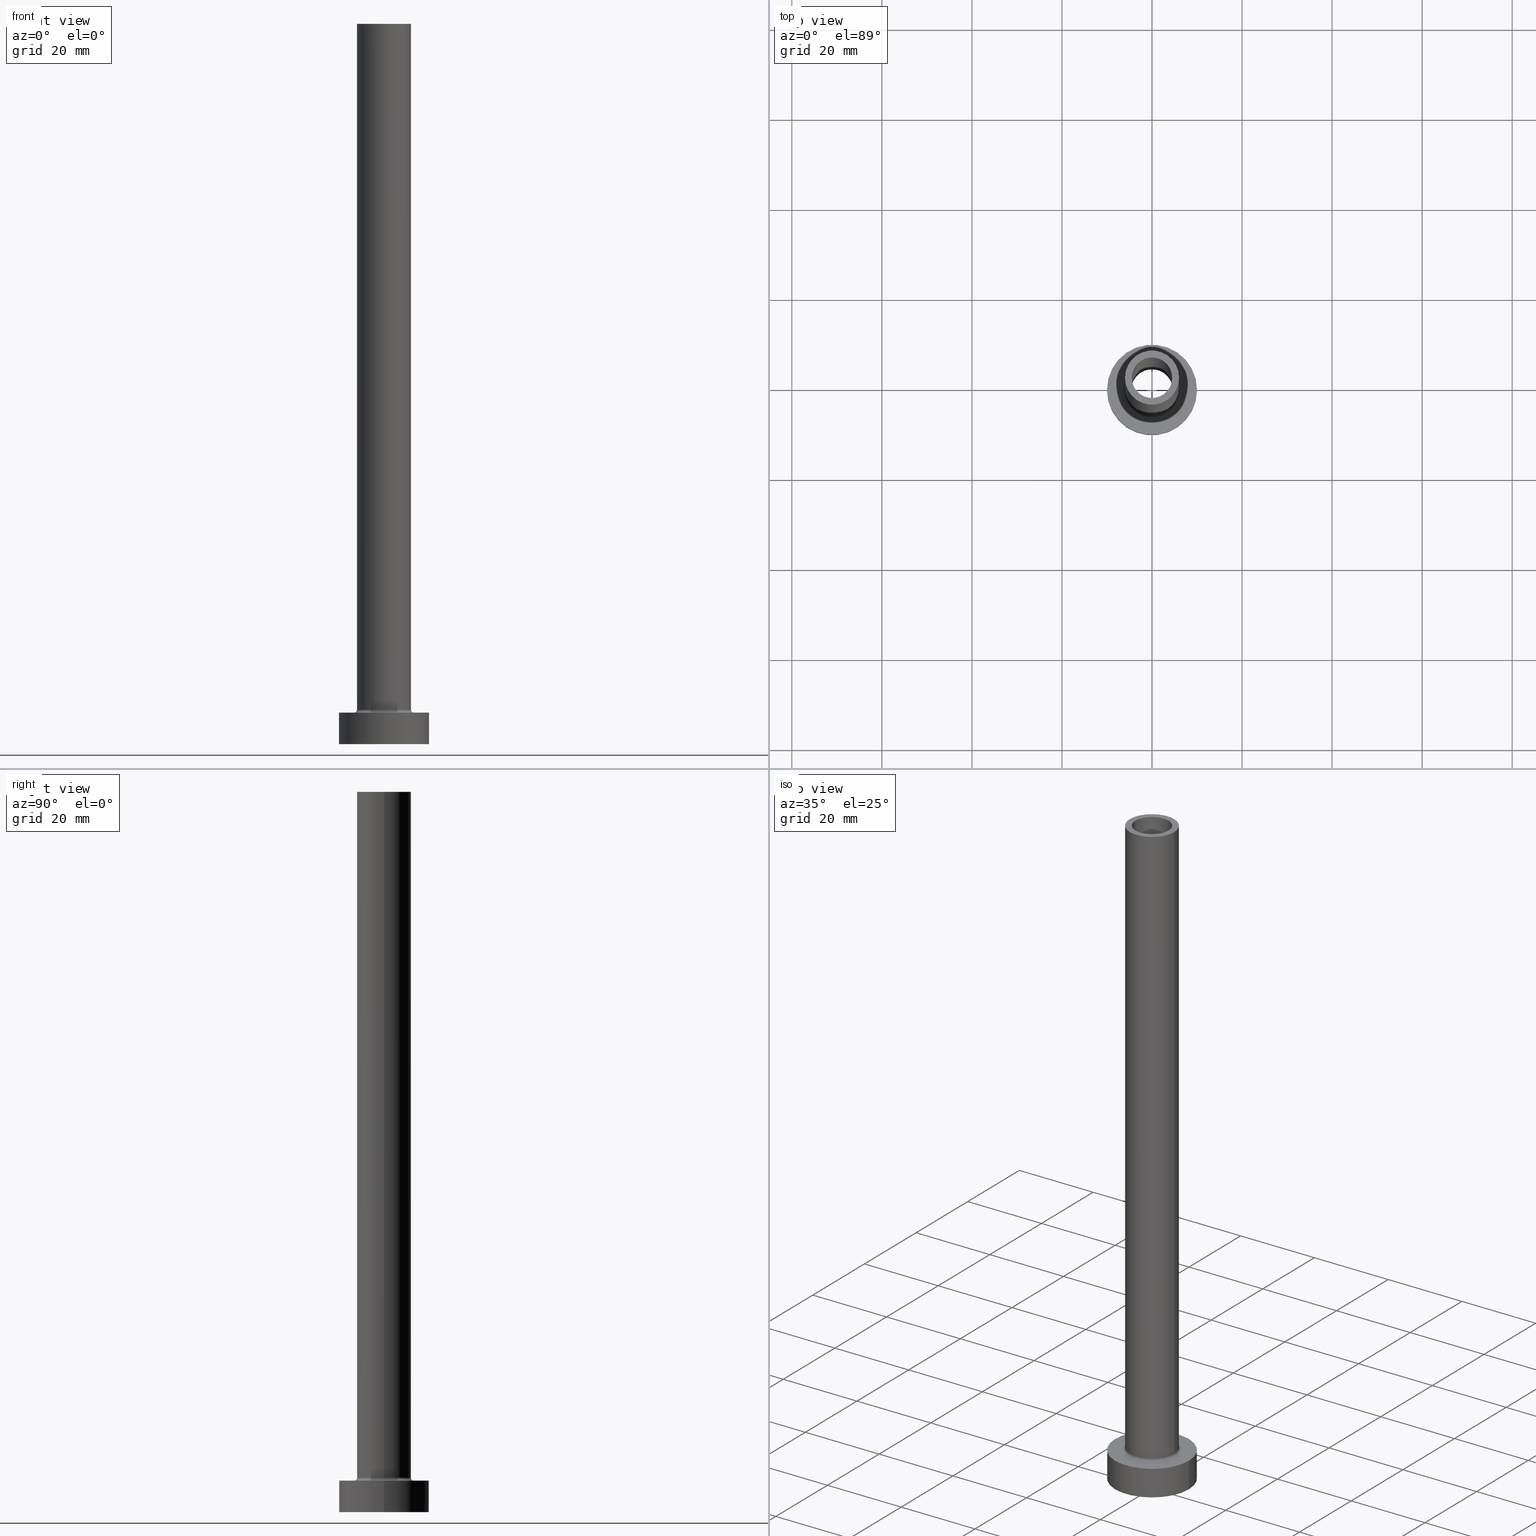
[diagram: canonical four-view strip — front | top / right | iso, engineering-drawing reading convention]
A machine part, canonical four-view strip (front | top / right | iso — engineering-drawing reading convention). The complete STEP part file that produces these views, byte-faithful:
ISO-10303-21;
HEADER;
FILE_DESCRIPTION (( 'STEP AP203' ),
    '1' );
FILE_NAME ('9dc5.STEP',
    '2023-02-13T11:03:16',
    ( '' ),
    ( '' ),
    'SwSTEP 2.0',
    'SolidWorks 2019',
    '' );
FILE_SCHEMA (( 'CONFIG_CONTROL_DESIGN' ));
ENDSEC;

DATA;
#1 = ADVANCED_FACE ( 'NONE', ( #326, #364 ), #114, .T. ) ;
#2 = VERTEX_POINT ( 'NONE', #297 ) ;
#3 = DIRECTION ( 'NONE',  ( 1.000000000000000000, 0.000000000000000000, 0.000000000000000000 ) ) ;
#4 = LINE ( 'NONE', #185, #147 ) ;
#5 = ADVANCED_FACE ( 'NONE', ( #266, #360 ), #183, .T. ) ;
#6 = AXIS2_PLACEMENT_3D ( 'NONE', #52, #191, #339 ) ;
#7 = CARTESIAN_POINT ( 'NONE',  ( 10.00000000000000000, 1.224646799147353256E-15, 0.000000000000000000 ) ) ;
#8 = DIRECTION ( 'NONE',  ( 0.000000000000000000, 0.000000000000000000, 1.000000000000000000 ) ) ;
#9 = DIRECTION ( 'NONE',  ( -0.000000000000000000, -0.000000000000000000, -1.000000000000000000 ) ) ;
#10 = ADVANCED_FACE ( 'NONE', ( #149 ), #293, .T. ) ;
#11 = EDGE_LOOP ( 'NONE', ( #430, #344, #249, #132 ) ) ;
#12 = TOROIDAL_SURFACE ( 'NONE', #175, 6.700000000000001066, 0.6999999999999999556 ) ;
#13 = CC_DESIGN_PERSON_AND_ORGANIZATION_ASSIGNMENT ( #245, #205, ( #59 ) ) ;
#14 = EDGE_CURVE ( 'NONE', #306, #256, #152, .T. ) ;
#15 = CARTESIAN_POINT ( 'NONE',  ( 4.500000000000000000, 5.510910596163087583E-16, 115.0000000000000000 ) ) ;
#16 = EDGE_CURVE ( 'NONE', #111, #254, #328, .T. ) ;
#17 = CYLINDRICAL_SURFACE ( 'NONE', #235, 4.500000000000000000 ) ;
#18 = CC_DESIGN_PERSON_AND_ORGANIZATION_ASSIGNMENT ( #448, #453, ( #29 ) ) ;
#19 = DIRECTION ( 'NONE',  ( 0.000000000000000000, 0.000000000000000000, -1.000000000000000000 ) ) ;
#20 = CARTESIAN_POINT ( 'NONE',  ( 0.000000000000000000, 0.000000000000000000, 115.0000000000000000 ) ) ;
#21 = CIRCLE ( 'NONE', #6, 6.000000000000000888 ) ;
#22 = DIRECTION ( 'NONE',  ( -1.000000000000000000, 0.000000000000000000, 0.000000000000000000 ) ) ;
#23 = VERTEX_POINT ( 'NONE', #130 ) ;
#24 = PERSON_AND_ORGANIZATION ( #238, #418 ) ;
#25 = CLOSED_SHELL ( 'NONE', ( #451, #423, #255, #79, #202, #10, #5, #187, #196, #1, #409, #355, #158, #396 ) ) ;
#26 = ORIENTED_EDGE ( 'NONE', *, *, #279, .F. ) ;
#27 = APPLICATION_PROTOCOL_DEFINITION ( 'international standard', 'config_control_design', 1994, #156 ) ;
#28 = AXIS2_PLACEMENT_3D ( 'NONE', #81, #222, #363 ) ;
#29 = PRODUCT_DEFINITION_FORMATION_WITH_SPECIFIED_SOURCE ( 'LIBOVOLN�', '', #59, .NOT_KNOWN. ) ;
#30 = DIRECTION ( 'NONE',  ( 1.000000000000000000, 0.000000000000000000, -0.000000000000000000 ) ) ;
#31 = ORIENTED_EDGE ( 'NONE', *, *, #400, .T. ) ;
#32 = CARTESIAN_POINT ( 'NONE',  ( 0.000000000000000000, 0.000000000000000000, 160.0000000000000000 ) ) ;
#33 = CIRCLE ( 'NONE', #361, 4.650000000000000355 ) ;
#34 = CC_DESIGN_PERSON_AND_ORGANIZATION_ASSIGNMENT ( #342, #384, ( #45 ) ) ;
#35 = CARTESIAN_POINT ( 'NONE',  ( 0.000000000000000000, 0.000000000000000000, 115.0000000000000000 ) ) ;
#36 = ORIENTED_EDGE ( 'NONE', *, *, #387, .F. ) ;
#37 = TOROIDAL_SURFACE ( 'NONE', #298, 6.700000000000001066, 0.6999999999999999556 ) ;
#38 = COORDINATED_UNIVERSAL_TIME_OFFSET ( 1, 0, .AHEAD. ) ;
#39 = CARTESIAN_POINT ( 'NONE',  ( 0.000000000000000000, 0.000000000000000000, 115.0000000000000000 ) ) ;
#40 = ORIENTED_EDGE ( 'NONE', *, *, #305, .F. ) ;
#41 = CARTESIAN_POINT ( 'NONE',  ( 0.000000000000000000, 0.000000000000000000, 128.1521861300697935 ) ) ;
#42 = EDGE_CURVE ( 'NONE', #218, #421, #122, .T. ) ;
#43 = CALENDAR_DATE ( 2023, 13, 2 ) ;
#44 = DIRECTION ( 'NONE',  ( 0.000000000000000000, 0.000000000000000000, 1.000000000000000000 ) ) ;
#45 = PRODUCT_DEFINITION ( 'NEZN�M�', '', #29, #197 ) ;
#46 = LOCAL_TIME ( 12, 3, 16.00000000000000000, #38 ) ;
#47 = CARTESIAN_POINT ( 'NONE',  ( 4.650000000000000355, 5.694607616035192869E-16, 0.000000000000000000 ) ) ;
#48 = EDGE_CURVE ( 'NONE', #357, #246, #33, .T. ) ;
#49 = ORIENTED_EDGE ( 'NONE', *, *, #440, .F. ) ;
#50 = CC_DESIGN_DATE_AND_TIME_ASSIGNMENT ( #129, #273, ( #45 ) ) ;
#51 = CARTESIAN_POINT ( 'NONE',  ( 0.000000000000000000, 0.000000000000000000, 160.0000000000000000 ) ) ;
#52 = CARTESIAN_POINT ( 'NONE',  ( 0.000000000000000000, 0.000000000000000000, 7.700000000000012612 ) ) ;
#53 = VECTOR ( 'NONE', #436, 1000.000000000000000 ) ;
#54 = CARTESIAN_POINT ( 'NONE',  ( 0.000000000000000000, 0.000000000000000000, 160.0000000000000000 ) ) ;
#55 = DIRECTION ( 'NONE',  ( 1.000000000000000000, 0.000000000000000000, 0.000000000000000000 ) ) ;
#56 = DIRECTION ( 'NONE',  ( 0.000000000000000000, 0.000000000000000000, -1.000000000000000000 ) ) ;
#57 = CARTESIAN_POINT ( 'NONE',  ( 0.000000000000000000, 0.000000000000000000, 0.000000000000000000 ) ) ;
#58 = LOCAL_TIME ( 12, 3, 16.00000000000000000, #311 ) ;
#59 = PRODUCT ( '9dc5', '9dc5', '', ( #67 ) ) ;
#60 = EDGE_CURVE ( 'NONE', #218, #357, #341, .T. ) ;
#61 = DIRECTION ( 'NONE',  ( -1.000000000000000000, 0.000000000000000000, 0.000000000000000000 ) ) ;
#62 = VERTEX_POINT ( 'NONE', #445 ) ;
#63 = DIRECTION ( 'NONE',  ( 0.000000000000000000, 0.000000000000000000, -1.000000000000000000 ) ) ;
#64 = EDGE_LOOP ( 'NONE', ( #241, #315, #103, #388 ) ) ;
#65 = CIRCLE ( 'NONE', #159, 4.650000000000000355 ) ;
#66 = EDGE_LOOP ( 'NONE', ( #112, #248 ) ) ;
#67 = MECHANICAL_CONTEXT ( 'NONE', #182, 'mechanical' ) ;
#68 = VECTOR ( 'NONE', #263, 1000.000000000000000 ) ;
#69 = ORIENTED_EDGE ( 'NONE', *, *, #319, .F. ) ;
#70 = PLANE ( 'NONE',  #390 ) ;
#71 = AXIS2_PLACEMENT_3D ( 'NONE', #87, #397, #220 ) ;
#72 = ORIENTED_EDGE ( 'NONE', *, *, #340, .T. ) ;
#73 = ORIENTED_EDGE ( 'NONE', *, *, #198, .T. ) ;
#74 = CIRCLE ( 'NONE', #366, 4.500000000000000000 ) ;
#75 = CARTESIAN_POINT ( 'NONE',  ( 4.500000000000000000, 5.510910596163087583E-16, 160.0000000000000000 ) ) ;
#76 = ORIENTED_EDGE ( 'NONE', *, *, #120, .T. ) ;
#77 = CIRCLE ( 'NONE', #141, 4.500000000000000000 ) ;
#78 = DATE_TIME_ROLE ( 'classification_date' ) ;
#79 = ADVANCED_FACE ( 'NONE', ( #274 ), #270, .T. ) ;
#80 = FACE_OUTER_BOUND ( 'NONE', #449, .T. ) ;
#81 = CARTESIAN_POINT ( 'NONE',  ( 0.000000000000000000, 0.000000000000000000, 0.000000000000000000 ) ) ;
#82 = APPROVAL ( #362, 'NEUR�EN�' ) ;
#83 = EDGE_CURVE ( 'NONE', #286, #447, #295, .T. ) ;
#84 = PERSON_AND_ORGANIZATION ( #238, #418 ) ;
#85 = DIRECTION ( 'NONE',  ( 1.000000000000000000, 0.000000000000000000, 0.000000000000000000 ) ) ;
#86 = VECTOR ( 'NONE', #56, 1000.000000000000000 ) ;
#87 = CARTESIAN_POINT ( 'NONE',  ( 0.000000000000000000, 0.000000000000000000, 160.0000000000000000 ) ) ;
#88 = ORIENTED_EDGE ( 'NONE', *, *, #446, .F. ) ;
#89 = DIRECTION ( 'NONE',  ( 0.000000000000000000, 0.000000000000000000, 1.000000000000000000 ) ) ;
#90 = CARTESIAN_POINT ( 'NONE',  ( -4.650000000000000355, 0.000000000000000000, 128.1521861300697935 ) ) ;
#91 = AXIS2_PLACEMENT_3D ( 'NONE', #383, #460, #454 ) ;
#92 = DIRECTION ( 'NONE',  ( 0.000000000000000000, 0.000000000000000000, 1.000000000000000000 ) ) ;
#93 = DIRECTION ( 'NONE',  ( -1.000000000000000000, 0.000000000000000000, 0.000000000000000000 ) ) ;
#94 = DIRECTION ( 'NONE',  ( -1.000000000000000000, 0.000000000000000000, 0.000000000000000000 ) ) ;
#95 = UNCERTAINTY_MEASURE_WITH_UNIT (LENGTH_MEASURE( 1.000000000000000082E-05 ), #406, 'distance_accuracy_value', 'NONE');
#96 = CARTESIAN_POINT ( 'NONE',  ( 0.000000000000000000, 0.000000000000000000, 160.0000000000000000 ) ) ;
#97 = CALENDAR_DATE ( 2023, 13, 2 ) ;
#98 = DIRECTION ( 'NONE',  ( 1.000000000000000000, 0.000000000000000000, 0.000000000000000000 ) ) ;
#99 = AXIS2_PLACEMENT_3D ( 'NONE', #338, #19, #161 ) ;
#100 = VERTEX_POINT ( 'NONE', #441 ) ;
#101 = EDGE_CURVE ( 'NONE', #62, #306, #157, .T. ) ;
#102 = DIRECTION ( 'NONE',  ( 0.000000000000000000, -1.000000000000000000, 0.000000000000000000 ) ) ;
#103 = ORIENTED_EDGE ( 'NONE', *, *, #143, .F. ) ;
#104 = ORIENTED_EDGE ( 'NONE', *, *, #14, .T. ) ;
#105 = ORIENTED_EDGE ( 'NONE', *, *, #83, .F. ) ;
#106 = ORIENTED_EDGE ( 'NONE', *, *, #345, .T. ) ;
#107 = ORIENTED_EDGE ( 'NONE', *, *, #299, .F. ) ;
#108 = ORIENTED_EDGE ( 'NONE', *, *, #365, .F. ) ;
#109 = APPROVAL_ROLE ( '' ) ;
#110 = DIRECTION ( 'NONE',  ( 1.000000000000000000, 0.000000000000000000, 0.000000000000000000 ) ) ;
#111 = VERTEX_POINT ( 'NONE', #413 ) ;
#112 = ORIENTED_EDGE ( 'NONE', *, *, #42, .F. ) ;
#113 = CARTESIAN_POINT ( 'NONE',  ( 0.000000000000000000, 0.000000000000000000, 7.700000000000012612 ) ) ;
#114 = PLANE ( 'NONE',  #71 ) ;
#115 = SECURITY_CLASSIFICATION ( '', '', #228 ) ;
#116 = LINE ( 'NONE', #189, #68 ) ;
#117 = LINE ( 'NONE', #371, #373 ) ;
#118 = VERTEX_POINT ( 'NONE', #15 ) ;
#119 = ORIENTED_EDGE ( 'NONE', *, *, #211, .T. ) ;
#120 = EDGE_CURVE ( 'NONE', #447, #281, #215, .T. ) ;
#121 = DIRECTION ( 'NONE',  ( 1.000000000000000000, 0.000000000000000000, 0.000000000000000000 ) ) ;
#122 = CIRCLE ( 'NONE', #223, 4.650000000000000355 ) ;
#123 = AXIS2_PLACEMENT_3D ( 'NONE', #51, #443, #124 ) ;
#124 = DIRECTION ( 'NONE',  ( 1.000000000000000000, 0.000000000000000000, 0.000000000000000000 ) ) ;
#125 = DIRECTION ( 'NONE',  ( 1.224646799147353207E-16, 1.000000000000000000, -0.000000000000000000 ) ) ;
#126 = EDGE_CURVE ( 'NONE', #287, #100, #74, .T. ) ;
#127 = AXIS2_PLACEMENT_3D ( 'NONE', #237, #125, #195 ) ;
#128 = ORIENTED_EDGE ( 'NONE', *, *, #48, .T. ) ;
#129 = DATE_AND_TIME ( #313, #394 ) ;
#130 = CARTESIAN_POINT ( 'NONE',  ( 10.00000000000000000, 1.224646799147353256E-15, 7.000000000000000000 ) ) ;
#131 = AXIS2_PLACEMENT_3D ( 'NONE', #35, #280, #164 ) ;
#132 = ORIENTED_EDGE ( 'NONE', *, *, #198, .F. ) ;
#133 = CARTESIAN_POINT ( 'NONE',  ( 0.000000000000000000, 0.000000000000000000, 160.0000000000000000 ) ) ;
#134 = MANIFOLD_SOLID_BREP ( 'Odebrat vysunut�m4', #25 ) ;
#135 = ORIENTED_EDGE ( 'NONE', *, *, #239, .T. ) ;
#136 = ORIENTED_EDGE ( 'NONE', *, *, #365, .T. ) ;
#137 = ORIENTED_EDGE ( 'NONE', *, *, #60, .T. ) ;
#138 = APPROVAL_ROLE ( '' ) ;
#139 = ORIENTED_EDGE ( 'NONE', *, *, #446, .T. ) ;
#140 = PLANE ( 'NONE',  #131 ) ;
#141 = AXIS2_PLACEMENT_3D ( 'NONE', #39, #44, #3 ) ;
#142 = EDGE_LOOP ( 'NONE', ( #419, #76 ) ) ;
#143 = EDGE_CURVE ( 'NONE', #455, #118, #330, .T. ) ;
#144 = ORIENTED_EDGE ( 'NONE', *, *, #126, .T. ) ;
#145 = DIRECTION ( 'NONE',  ( 0.000000000000000000, 0.000000000000000000, 1.000000000000000000 ) ) ;
#146 = DIRECTION ( 'NONE',  ( -0.000000000000000000, -0.000000000000000000, -1.000000000000000000 ) ) ;
#147 = VECTOR ( 'NONE', #146, 1000.000000000000000 ) ;
#148 = CARTESIAN_POINT ( 'NONE',  ( -6.000000000000000888, 0.000000000000000000, 7.700000000000012612 ) ) ;
#149 = FACE_OUTER_BOUND ( 'NONE', #382, .T. ) ;
#150 = CC_DESIGN_DATE_AND_TIME_ASSIGNMENT ( #180, #78, ( #115 ) ) ;
#151 = CARTESIAN_POINT ( 'NONE',  ( 0.000000000000000000, 0.000000000000000000, 7.000000000000000000 ) ) ;
#152 = LINE ( 'NONE', #374, #268 ) ;
#153 = CARTESIAN_POINT ( 'NONE',  ( 6.000000000000000888, 7.347880794884120722E-16, 7.700000000000012612 ) ) ;
#154 = EDGE_CURVE ( 'NONE', #421, #218, #65, .T. ) ;
#155 = AXIS2_PLACEMENT_3D ( 'NONE', #252, #172, #459 ) ;
#156 = APPLICATION_CONTEXT ( 'configuration controlled 3d designs of mechanical parts and assemblies' ) ;
#157 = CIRCLE ( 'NONE', #414, 6.000000000000000888 ) ;
#158 = ADVANCED_FACE ( 'NONE', ( #385, #212 ), #140, .F. ) ;
#159 = AXIS2_PLACEMENT_3D ( 'NONE', #349, #282, #314 ) ;
#160 = AXIS2_PLACEMENT_3D ( 'NONE', #113, #288, #85 ) ;
#161 = DIRECTION ( 'NONE',  ( -1.000000000000000000, 0.000000000000000000, 0.000000000000000000 ) ) ;
#162 = DIRECTION ( 'NONE',  ( 0.000000000000000000, 0.000000000000000000, 1.000000000000000000 ) ) ;
#163 = EDGE_LOOP ( 'NONE', ( #213, #104, #139, #40 ) ) ;
#164 = DIRECTION ( 'NONE',  ( 1.000000000000000000, 0.000000000000000000, -0.000000000000000000 ) ) ;
#165 = CIRCLE ( 'NONE', #323, 0.7000000000000000666 ) ;
#166 = PERSON_AND_ORGANIZATION ( #238, #418 ) ;
#167 = VECTOR ( 'NONE', #188, 1000.000000000000000 ) ;
#168 = EDGE_LOOP ( 'NONE', ( #452, #72 ) ) ;
#169 = APPROVAL_STATUS ( 'not_yet_approved' ) ;
#170 = CYLINDRICAL_SURFACE ( 'NONE', #192, 6.000000000000000888 ) ;
#171 = EDGE_LOOP ( 'NONE', ( #433, #190, #415, #135 ) ) ;
#172 = DIRECTION ( 'NONE',  ( 0.000000000000000000, 0.000000000000000000, 1.000000000000000000 ) ) ;
#173 = EDGE_LOOP ( 'NONE', ( #31, #258 ) ) ;
#174 = DATE_AND_TIME ( #214, #58 ) ;
#175 = AXIS2_PLACEMENT_3D ( 'NONE', #296, #145, #290 ) ;
#176 = ORIENTED_EDGE ( 'NONE', *, *, #120, .F. ) ;
#177 = ORIENTED_EDGE ( 'NONE', *, *, #336, .F. ) ;
#178 = FACE_OUTER_BOUND ( 'NONE', #11, .T. ) ;
#179 = APPROVAL ( #169, 'NEUR�EN�' ) ;
#180 = DATE_AND_TIME ( #43, #450 ) ;
#181 = DIRECTION ( 'NONE',  ( 0.000000000000000000, 0.000000000000000000, -1.000000000000000000 ) ) ;
#182 = APPLICATION_CONTEXT ( 'configuration controlled 3d designs of mechanical parts and assemblies' ) ;
#183 = PLANE ( 'NONE',  #337 ) ;
#184 = AXIS2_PLACEMENT_3D ( 'NONE', #151, #389, #404 ) ;
#185 = CARTESIAN_POINT ( 'NONE',  ( -6.000000000000000888, 0.000000000000000000, 160.0000000000000000 ) ) ;
#186 = AXIS2_PLACEMENT_3D ( 'NONE', #203, #92, #304 ) ;
#187 = ADVANCED_FACE ( 'NONE', ( #351, #424 ), #70, .F. ) ;
#188 = DIRECTION ( 'NONE',  ( 0.000000000000000000, 0.000000000000000000, -1.000000000000000000 ) ) ;
#189 = CARTESIAN_POINT ( 'NONE',  ( 10.00000000000000000, 1.224646799147353256E-15, 7.000000000000000000 ) ) ;
#190 = ORIENTED_EDGE ( 'NONE', *, *, #101, .F. ) ;
#191 = DIRECTION ( 'NONE',  ( 0.000000000000000000, 0.000000000000000000, 1.000000000000000000 ) ) ;
#192 = AXIS2_PLACEMENT_3D ( 'NONE', #32, #317, #61 ) ;
#193 = APPROVAL_PERSON_ORGANIZATION ( #24, #393, #138 ) ;
#194 = CARTESIAN_POINT ( 'NONE',  ( 0.000000000000000000, 0.000000000000000000, 7.700000000000012612 ) ) ;
#195 = DIRECTION ( 'NONE',  ( -1.000000000000000000, 1.224646799147353454E-16, 0.000000000000000000 ) ) ;
#196 = ADVANCED_FACE ( 'NONE', ( #308 ), #170, .T. ) ;
#197 = DESIGN_CONTEXT ( 'detailed design', #156, 'design' ) ;
#198 = EDGE_CURVE ( 'NONE', #256, #281, #165, .T. ) ;
#199 = CARTESIAN_POINT ( 'NONE',  ( 4.500000000000000000, 5.510910596163087583E-16, 160.0000000000000000 ) ) ;
#200 = DIRECTION ( 'NONE',  ( 0.000000000000000000, 0.000000000000000000, 1.000000000000000000 ) ) ;
#201 = FACE_OUTER_BOUND ( 'NONE', #310, .T. ) ;
#202 = ADVANCED_FACE ( 'NONE', ( #457 ), #329, .T. ) ;
#203 = CARTESIAN_POINT ( 'NONE',  ( 0.000000000000000000, 0.000000000000000000, 7.000000000000000000 ) ) ;
#204 = ORIENTED_EDGE ( 'NONE', *, *, #126, .F. ) ;
#205 = PERSON_AND_ORGANIZATION_ROLE ( 'design_owner' ) ;
#206 = CARTESIAN_POINT ( 'NONE',  ( 6.700000000000001066, 0.000000000000000000, 7.700000000000012612 ) ) ;
#207 = ORIENTED_EDGE ( 'NONE', *, *, #400, .F. ) ;
#208 = CIRCLE ( 'NONE', #123, 4.500000000000000000 ) ;
#209 = DIRECTION ( 'NONE',  ( 0.000000000000000000, 0.000000000000000000, 1.000000000000000000 ) ) ;
#210 = ORIENTED_EDGE ( 'NONE', *, *, #101, .T. ) ;
#211 = EDGE_CURVE ( 'NONE', #306, #62, #381, .T. ) ;
#212 = FACE_OUTER_BOUND ( 'NONE', #66, .T. ) ;
#213 = ORIENTED_EDGE ( 'NONE', *, *, #211, .F. ) ;
#214 = CALENDAR_DATE ( 2023, 13, 2 ) ;
#215 = CIRCLE ( 'NONE', #275, 6.700000000000001066 ) ;
#216 = DIRECTION ( 'NONE',  ( 0.000000000000000000, 0.000000000000000000, -1.000000000000000000 ) ) ;
#217 = CC_DESIGN_APPROVAL ( #393, ( #29 ) ) ;
#218 = VERTEX_POINT ( 'NONE', #402 ) ;
#219 = CYLINDRICAL_SURFACE ( 'NONE', #428, 4.650000000000000355 ) ;
#220 = DIRECTION ( 'NONE',  ( 1.000000000000000000, 0.000000000000000000, -0.000000000000000000 ) ) ;
#221 = PERSON_AND_ORGANIZATION_ROLE ( 'classification_officer' ) ;
#222 = DIRECTION ( 'NONE',  ( 0.000000000000000000, 0.000000000000000000, 1.000000000000000000 ) ) ;
#223 = AXIS2_PLACEMENT_3D ( 'NONE', #20, #162, #377 ) ;
#224 = DIRECTION ( 'NONE',  ( 1.000000000000000000, 0.000000000000000000, -0.000000000000000000 ) ) ;
#225 = SHAPE_DEFINITION_REPRESENTATION ( #398, #234 ) ;
#226 = CARTESIAN_POINT ( 'NONE',  ( 0.000000000000000000, 0.000000000000000000, 7.000000000000000000 ) ) ;
#227 = CIRCLE ( 'NONE', #160, 6.000000000000000888 ) ;
#228 = SECURITY_CLASSIFICATION_LEVEL ( 'unclassified' ) ;
#229 = CARTESIAN_POINT ( 'NONE',  ( 6.700000000000001066, 0.000000000000000000, 7.000000000000006217 ) ) ;
#230 = EDGE_CURVE ( 'NONE', #23, #254, #116, .T. ) ;
#231 = CYLINDRICAL_SURFACE ( 'NONE', #99, 4.650000000000000355 ) ;
#232 =( NAMED_UNIT ( * ) SI_UNIT ( $, .STERADIAN. ) SOLID_ANGLE_UNIT ( ) );
#233 = DIRECTION ( 'NONE',  ( 0.000000000000000000, 0.000000000000000000, -1.000000000000000000 ) ) ;
#234 = ADVANCED_BREP_SHAPE_REPRESENTATION ( '9dc5', ( #134, #155 ), #309 ) ;
#235 = AXIS2_PLACEMENT_3D ( 'NONE', #302, #408, #93 ) ;
#236 = DIRECTION ( 'NONE',  ( 0.000000000000000000, 0.000000000000000000, -1.000000000000000000 ) ) ;
#237 = CARTESIAN_POINT ( 'NONE',  ( -6.700000000000001066, 8.205133554287267548E-16, 7.700000000000012612 ) ) ;
#238 = PERSON ( 'NEUR�EN�', 'NEUR�EN�', 'NEUR�EN�', ('NEUR�EN�'), ('NEUR�EN�'), ('NEUR�EN�') ) ;
#239 = EDGE_CURVE ( 'NONE', #286, #256, #227, .T. ) ;
#240 = CIRCLE ( 'NONE', #378, 4.650000000000000355 ) ;
#241 = ORIENTED_EDGE ( 'NONE', *, *, #440, .T. ) ;
#242 = DATE_AND_TIME ( #97, #354 ) ;
#243 = DIRECTION ( 'NONE',  ( 1.000000000000000000, 0.000000000000000000, 0.000000000000000000 ) ) ;
#244 = ORIENTED_EDGE ( 'NONE', *, *, #230, .T. ) ;
#245 = PERSON_AND_ORGANIZATION ( #238, #418 ) ;
#246 = VERTEX_POINT ( 'NONE', #47 ) ;
#247 = ORIENTED_EDGE ( 'NONE', *, *, #42, .T. ) ;
#248 = ORIENTED_EDGE ( 'NONE', *, *, #154, .F. ) ;
#249 = ORIENTED_EDGE ( 'NONE', *, *, #332, .F. ) ;
#250 = AXIS2_PLACEMENT_3D ( 'NONE', #359, #292, #321 ) ;
#251 = DIRECTION ( 'NONE',  ( 1.000000000000000000, 0.000000000000000000, 0.000000000000000000 ) ) ;
#252 = CARTESIAN_POINT ( 'NONE',  ( 0.000000000000000000, 0.000000000000000000, 0.000000000000000000 ) ) ;
#253 = DIRECTION ( 'NONE',  ( -0.000000000000000000, -0.000000000000000000, -1.000000000000000000 ) ) ;
#254 = VERTEX_POINT ( 'NONE', #7 ) ;
#255 = ADVANCED_FACE ( 'NONE', ( #178 ), #12, .F. ) ;
#256 = VERTEX_POINT ( 'NONE', #153 ) ;
#257 = CARTESIAN_POINT ( 'NONE',  ( 0.000000000000000000, 0.000000000000000000, 0.000000000000000000 ) ) ;
#258 = ORIENTED_EDGE ( 'NONE', *, *, #279, .T. ) ;
#259 = CARTESIAN_POINT ( 'NONE',  ( -4.500000000000000000, 0.000000000000000000, 160.0000000000000000 ) ) ;
#260 = CIRCLE ( 'NONE', #186, 10.00000000000000000 ) ;
#261 = APPROVAL_DATE_TIME ( #367, #82 ) ;
#262 = LINE ( 'NONE', #259, #167 ) ;
#263 = DIRECTION ( 'NONE',  ( -0.000000000000000000, -0.000000000000000000, -1.000000000000000000 ) ) ;
#264 = DIRECTION ( 'NONE',  ( -0.000000000000000000, -0.000000000000000000, -1.000000000000000000 ) ) ;
#265 = DIRECTION ( 'NONE',  ( 1.000000000000000000, 0.000000000000000000, 0.000000000000000000 ) ) ;
#266 = FACE_BOUND ( 'NONE', #142, .T. ) ;
#267 = CYLINDRICAL_SURFACE ( 'NONE', #461, 4.500000000000000000 ) ;
#268 = VECTOR ( 'NONE', #300, 1000.000000000000000 ) ;
#269 =( NAMED_UNIT ( * ) PLANE_ANGLE_UNIT ( ) SI_UNIT ( $, .RADIAN. ) );
#270 = CYLINDRICAL_SURFACE ( 'NONE', #352, 6.000000000000000888 ) ;
#271 = CARTESIAN_POINT ( 'NONE',  ( -6.700000000000001066, 8.205133554287267548E-16, 7.000000000000006217 ) ) ;
#272 = DIRECTION ( 'NONE',  ( 0.000000000000000000, 0.000000000000000000, 1.000000000000000000 ) ) ;
#273 = DATE_TIME_ROLE ( 'creation_date' ) ;
#274 = FACE_OUTER_BOUND ( 'NONE', #163, .T. ) ;
#275 = AXIS2_PLACEMENT_3D ( 'NONE', #429, #253, #251 ) ;
#276 = ORIENTED_EDGE ( 'NONE', *, *, #154, .T. ) ;
#277 = ORIENTED_EDGE ( 'NONE', *, *, #336, .T. ) ;
#278 = PERSON_AND_ORGANIZATION ( #238, #418 ) ;
#279 = EDGE_CURVE ( 'NONE', #23, #2, #410, .T. ) ;
#280 = DIRECTION ( 'NONE',  ( 0.000000000000000000, 0.000000000000000000, 1.000000000000000000 ) ) ;
#281 = VERTEX_POINT ( 'NONE', #229 ) ;
#282 = DIRECTION ( 'NONE',  ( 0.000000000000000000, 0.000000000000000000, 1.000000000000000000 ) ) ;
#283 = APPROVAL_ROLE ( '' ) ;
#284 = CC_DESIGN_APPROVAL ( #179, ( #45 ) ) ;
#285 = EDGE_LOOP ( 'NONE', ( #427, #108 ) ) ;
#286 = VERTEX_POINT ( 'NONE', #148 ) ;
#287 = VERTEX_POINT ( 'NONE', #75 ) ;
#288 = DIRECTION ( 'NONE',  ( 0.000000000000000000, 0.000000000000000000, 1.000000000000000000 ) ) ;
#289 = EDGE_LOOP ( 'NONE', ( #36, #144, #106, #350 ) ) ;
#290 = DIRECTION ( 'NONE',  ( 1.000000000000000000, 0.000000000000000000, 0.000000000000000000 ) ) ;
#291 = CC_DESIGN_APPROVAL ( #82, ( #115 ) ) ;
#292 = DIRECTION ( 'NONE',  ( 0.000000000000000000, 0.000000000000000000, 1.000000000000000000 ) ) ;
#293 = CYLINDRICAL_SURFACE ( 'NONE', #320, 10.00000000000000000 ) ;
#294 = DIRECTION ( 'NONE',  ( 0.000000000000000000, 0.000000000000000000, 1.000000000000000000 ) ) ;
#295 = CIRCLE ( 'NONE', #127, 0.7000000000000000666 ) ;
#296 = CARTESIAN_POINT ( 'NONE',  ( 0.000000000000000000, 0.000000000000000000, 7.700000000000012612 ) ) ;
#297 = CARTESIAN_POINT ( 'NONE',  ( -10.00000000000000000, 0.000000000000000000, 7.000000000000000000 ) ) ;
#298 = AXIS2_PLACEMENT_3D ( 'NONE', #194, #89, #55 ) ;
#299 = EDGE_CURVE ( 'NONE', #421, #246, #117, .T. ) ;
#300 = DIRECTION ( 'NONE',  ( -0.000000000000000000, -0.000000000000000000, -1.000000000000000000 ) ) ;
#301 = VECTOR ( 'NONE', #233, 1000.000000000000000 ) ;
#302 = CARTESIAN_POINT ( 'NONE',  ( 0.000000000000000000, 0.000000000000000000, 160.0000000000000000 ) ) ;
#303 = DIRECTION ( 'NONE',  ( -0.000000000000000000, -0.000000000000000000, -1.000000000000000000 ) ) ;
#304 = DIRECTION ( 'NONE',  ( 1.000000000000000000, 0.000000000000000000, 0.000000000000000000 ) ) ;
#305 = EDGE_CURVE ( 'NONE', #62, #286, #4, .T. ) ;
#306 = VERTEX_POINT ( 'NONE', #432 ) ;
#307 = APPROVAL_DATE_TIME ( #242, #393 ) ;
#308 = FACE_OUTER_BOUND ( 'NONE', #171, .T. ) ;
#309 =( GEOMETRIC_REPRESENTATION_CONTEXT ( 3 ) GLOBAL_UNCERTAINTY_ASSIGNED_CONTEXT ( ( #95 ) ) GLOBAL_UNIT_ASSIGNED_CONTEXT ( ( #406, #269, #232 ) ) REPRESENTATION_CONTEXT ( 'NONE', 'WORKASPACE' ) );
#310 = EDGE_LOOP ( 'NONE', ( #247, #386, #277, #392 ) ) ;
#311 = COORDINATED_UNIVERSAL_TIME_OFFSET ( 1, 0, .AHEAD. ) ;
#312 = EDGE_LOOP ( 'NONE', ( #458, #177 ) ) ;
#313 = CALENDAR_DATE ( 2023, 13, 2 ) ;
#314 = DIRECTION ( 'NONE',  ( 1.000000000000000000, 0.000000000000000000, 0.000000000000000000 ) ) ;
#315 = ORIENTED_EDGE ( 'NONE', *, *, #387, .T. ) ;
#316 = APPLICATION_PROTOCOL_DEFINITION ( 'international standard', 'config_control_design', 1994, #182 ) ;
#317 = DIRECTION ( 'NONE',  ( -0.000000000000000000, -0.000000000000000000, -1.000000000000000000 ) ) ;
#318 = CARTESIAN_POINT ( 'NONE',  ( 0.000000000000000000, 0.000000000000000000, 7.000000000000000000 ) ) ;
#319 = EDGE_CURVE ( 'NONE', #2, #111, #356, .T. ) ;
#320 = AXIS2_PLACEMENT_3D ( 'NONE', #437, #264, #403 ) ;
#321 = DIRECTION ( 'NONE',  ( 1.000000000000000000, 0.000000000000000000, 0.000000000000000000 ) ) ;
#322 = CARTESIAN_POINT ( 'NONE',  ( 0.000000000000000000, 0.000000000000000000, 7.000000000000000000 ) ) ;
#323 = AXIS2_PLACEMENT_3D ( 'NONE', #206, #102, #63 ) ;
#324 = LINE ( 'NONE', #199, #86 ) ;
#325 = AXIS2_PLACEMENT_3D ( 'NONE', #318, #294, #265 ) ;
#326 = FACE_BOUND ( 'NONE', #431, .T. ) ;
#327 = DIRECTION ( 'NONE',  ( -1.000000000000000000, 0.000000000000000000, 0.000000000000000000 ) ) ;
#328 = CIRCLE ( 'NONE', #376, 10.00000000000000000 ) ;
#329 = CYLINDRICAL_SURFACE ( 'NONE', #184, 10.00000000000000000 ) ;
#330 = CIRCLE ( 'NONE', #91, 4.500000000000000000 ) ;
#331 = CARTESIAN_POINT ( 'NONE',  ( -4.500000000000000000, 0.000000000000000000, 115.0000000000000000 ) ) ;
#332 = EDGE_CURVE ( 'NONE', #281, #447, #439, .T. ) ;
#333 = CIRCLE ( 'NONE', #28, 10.00000000000000000 ) ;
#334 = FACE_OUTER_BOUND ( 'NONE', #64, .T. ) ;
#335 = CARTESIAN_POINT ( 'NONE',  ( 0.000000000000000000, 0.000000000000000000, 160.0000000000000000 ) ) ;
#336 = EDGE_CURVE ( 'NONE', #246, #357, #240, .T. ) ;
#337 = AXIS2_PLACEMENT_3D ( 'NONE', #322, #8, #224 ) ;
#338 = CARTESIAN_POINT ( 'NONE',  ( 0.000000000000000000, 0.000000000000000000, 128.1521861300697935 ) ) ;
#339 = DIRECTION ( 'NONE',  ( 1.000000000000000000, 0.000000000000000000, 0.000000000000000000 ) ) ;
#340 = EDGE_CURVE ( 'NONE', #118, #455, #77, .T. ) ;
#341 = LINE ( 'NONE', #90, #301 ) ;
#342 = PERSON_AND_ORGANIZATION ( #238, #418 ) ;
#343 = PRODUCT_RELATED_PRODUCT_CATEGORY ( 'detail', '', ( #59 ) ) ;
#344 = ORIENTED_EDGE ( 'NONE', *, *, #83, .T. ) ;
#345 = EDGE_CURVE ( 'NONE', #100, #455, #262, .T. ) ;
#346 = CC_DESIGN_SECURITY_CLASSIFICATION ( #115, ( #29 ) ) ;
#347 = EDGE_LOOP ( 'NONE', ( #210, #119 ) ) ;
#348 = APPROVAL_DATE_TIME ( #174, #179 ) ;
#349 = CARTESIAN_POINT ( 'NONE',  ( 0.000000000000000000, 0.000000000000000000, 115.0000000000000000 ) ) ;
#350 = ORIENTED_EDGE ( 'NONE', *, *, #340, .F. ) ;
#351 = FACE_BOUND ( 'NONE', #312, .T. ) ;
#352 = AXIS2_PLACEMENT_3D ( 'NONE', #54, #411, #94 ) ;
#353 = COORDINATED_UNIVERSAL_TIME_OFFSET ( 1, 0, .AHEAD. ) ;
#354 = LOCAL_TIME ( 12, 3, 16.00000000000000000, #416 ) ;
#355 = ADVANCED_FACE ( 'NONE', ( #80 ), #219, .F. ) ;
#356 = LINE ( 'NONE', #435, #53 ) ;
#357 = VERTEX_POINT ( 'NONE', #399 ) ;
#358 = PERSON_AND_ORGANIZATION ( #238, #418 ) ;
#359 = CARTESIAN_POINT ( 'NONE',  ( 0.000000000000000000, 0.000000000000000000, 160.0000000000000000 ) ) ;
#360 = FACE_OUTER_BOUND ( 'NONE', #173, .T. ) ;
#361 = AXIS2_PLACEMENT_3D ( 'NONE', #57, #303, #98 ) ;
#362 = APPROVAL_STATUS ( 'not_yet_approved' ) ;
#363 = DIRECTION ( 'NONE',  ( 1.000000000000000000, 0.000000000000000000, 0.000000000000000000 ) ) ;
#364 = FACE_OUTER_BOUND ( 'NONE', #347, .T. ) ;
#365 = EDGE_CURVE ( 'NONE', #254, #111, #333, .T. ) ;
#366 = AXIS2_PLACEMENT_3D ( 'NONE', #133, #209, #110 ) ;
#367 = DATE_AND_TIME ( #434, #46 ) ;
#368 = CARTESIAN_POINT ( 'NONE',  ( 0.000000000000000000, 0.000000000000000000, 0.000000000000000000 ) ) ;
#369 = AXIS2_PLACEMENT_3D ( 'NONE', #226, #438, #395 ) ;
#370 = CC_DESIGN_PERSON_AND_ORGANIZATION_ASSIGNMENT ( #358, #221, ( #115 ) ) ;
#371 = CARTESIAN_POINT ( 'NONE',  ( 4.650000000000000355, 5.694607616035192869E-16, 128.1521861300697935 ) ) ;
#372 = FACE_OUTER_BOUND ( 'NONE', #289, .T. ) ;
#373 = VECTOR ( 'NONE', #216, 1000.000000000000000 ) ;
#374 = CARTESIAN_POINT ( 'NONE',  ( 6.000000000000000888, 7.347880794884120722E-16, 160.0000000000000000 ) ) ;
#375 = FACE_OUTER_BOUND ( 'NONE', #391, .T. ) ;
#376 = AXIS2_PLACEMENT_3D ( 'NONE', #407, #200, #417 ) ;
#377 = DIRECTION ( 'NONE',  ( 1.000000000000000000, 0.000000000000000000, 0.000000000000000000 ) ) ;
#378 = AXIS2_PLACEMENT_3D ( 'NONE', #368, #9, #121 ) ;
#379 = ORIENTED_EDGE ( 'NONE', *, *, #230, .F. ) ;
#380 = ORIENTED_EDGE ( 'NONE', *, *, #16, .T. ) ;
#381 = CIRCLE ( 'NONE', #250, 6.000000000000000888 ) ;
#382 = EDGE_LOOP ( 'NONE', ( #379, #207, #425, #380 ) ) ;
#383 = CARTESIAN_POINT ( 'NONE',  ( 0.000000000000000000, 0.000000000000000000, 115.0000000000000000 ) ) ;
#384 = PERSON_AND_ORGANIZATION_ROLE ( 'creator' ) ;
#385 = FACE_BOUND ( 'NONE', #168, .T. ) ;
#386 = ORIENTED_EDGE ( 'NONE', *, *, #299, .T. ) ;
#387 = EDGE_CURVE ( 'NONE', #287, #118, #324, .T. ) ;
#388 = ORIENTED_EDGE ( 'NONE', *, *, #345, .F. ) ;
#389 = DIRECTION ( 'NONE',  ( -0.000000000000000000, -0.000000000000000000, -1.000000000000000000 ) ) ;
#390 = AXIS2_PLACEMENT_3D ( 'NONE', #257, #420, #30 ) ;
#391 = EDGE_LOOP ( 'NONE', ( #105, #88, #73, #176 ) ) ;
#392 = ORIENTED_EDGE ( 'NONE', *, *, #60, .F. ) ;
#393 = APPROVAL ( #456, 'NEUR�EN�' ) ;
#394 = LOCAL_TIME ( 12, 3, 16.00000000000000000, #353 ) ;
#395 = DIRECTION ( 'NONE',  ( 1.000000000000000000, 0.000000000000000000, 0.000000000000000000 ) ) ;
#396 = ADVANCED_FACE ( 'NONE', ( #372 ), #17, .F. ) ;
#397 = DIRECTION ( 'NONE',  ( 0.000000000000000000, 0.000000000000000000, 1.000000000000000000 ) ) ;
#398 = PRODUCT_DEFINITION_SHAPE ( 'NONE', 'NONE',  #45 ) ;
#399 = CARTESIAN_POINT ( 'NONE',  ( -4.650000000000000355, 0.000000000000000000, 0.000000000000000000 ) ) ;
#400 = EDGE_CURVE ( 'NONE', #2, #23, #260, .T. ) ;
#401 = COORDINATED_UNIVERSAL_TIME_OFFSET ( 1, 0, .AHEAD. ) ;
#402 = CARTESIAN_POINT ( 'NONE',  ( -4.650000000000000355, 0.000000000000000000, 115.0000000000000000 ) ) ;
#403 = DIRECTION ( 'NONE',  ( -1.000000000000000000, 0.000000000000000000, 0.000000000000000000 ) ) ;
#404 = DIRECTION ( 'NONE',  ( -1.000000000000000000, 0.000000000000000000, 0.000000000000000000 ) ) ;
#405 = APPROVAL_PERSON_ORGANIZATION ( #166, #179, #283 ) ;
#406 =( LENGTH_UNIT ( ) NAMED_UNIT ( * ) SI_UNIT ( .MILLI., .METRE. ) );
#407 = CARTESIAN_POINT ( 'NONE',  ( 0.000000000000000000, 0.000000000000000000, 0.000000000000000000 ) ) ;
#408 = DIRECTION ( 'NONE',  ( 0.000000000000000000, 0.000000000000000000, -1.000000000000000000 ) ) ;
#409 = ADVANCED_FACE ( 'NONE', ( #375 ), #37, .F. ) ;
#410 = CIRCLE ( 'NONE', #325, 10.00000000000000000 ) ;
#411 = DIRECTION ( 'NONE',  ( -0.000000000000000000, -0.000000000000000000, -1.000000000000000000 ) ) ;
#412 = CARTESIAN_POINT ( 'NONE',  ( 4.650000000000000355, 5.694607616035192869E-16, 115.0000000000000000 ) ) ;
#413 = CARTESIAN_POINT ( 'NONE',  ( -10.00000000000000000, 0.000000000000000000, 0.000000000000000000 ) ) ;
#414 = AXIS2_PLACEMENT_3D ( 'NONE', #335, #272, #243 ) ;
#415 = ORIENTED_EDGE ( 'NONE', *, *, #305, .T. ) ;
#416 = COORDINATED_UNIVERSAL_TIME_OFFSET ( 1, 0, .AHEAD. ) ;
#417 = DIRECTION ( 'NONE',  ( 1.000000000000000000, 0.000000000000000000, 0.000000000000000000 ) ) ;
#418 = ORGANIZATION ( 'NEUR�EN�', 'NEUR�EN�', '' ) ;
#419 = ORIENTED_EDGE ( 'NONE', *, *, #332, .T. ) ;
#420 = DIRECTION ( 'NONE',  ( 0.000000000000000000, 0.000000000000000000, 1.000000000000000000 ) ) ;
#421 = VERTEX_POINT ( 'NONE', #412 ) ;
#422 = PERSON_AND_ORGANIZATION_ROLE ( 'design_supplier' ) ;
#423 = ADVANCED_FACE ( 'NONE', ( #201 ), #231, .F. ) ;
#424 = FACE_OUTER_BOUND ( 'NONE', #285, .T. ) ;
#425 = ORIENTED_EDGE ( 'NONE', *, *, #319, .T. ) ;
#426 = CC_DESIGN_PERSON_AND_ORGANIZATION_ASSIGNMENT ( #278, #422, ( #29 ) ) ;
#427 = ORIENTED_EDGE ( 'NONE', *, *, #16, .F. ) ;
#428 = AXIS2_PLACEMENT_3D ( 'NONE', #41, #181, #327 ) ;
#429 = CARTESIAN_POINT ( 'NONE',  ( 0.000000000000000000, 0.000000000000000000, 7.000000000000000000 ) ) ;
#430 = ORIENTED_EDGE ( 'NONE', *, *, #239, .F. ) ;
#431 = EDGE_LOOP ( 'NONE', ( #49, #204 ) ) ;
#432 = CARTESIAN_POINT ( 'NONE',  ( 6.000000000000000888, 7.347880794884120722E-16, 160.0000000000000000 ) ) ;
#433 = ORIENTED_EDGE ( 'NONE', *, *, #14, .F. ) ;
#434 = CALENDAR_DATE ( 2023, 13, 2 ) ;
#435 = CARTESIAN_POINT ( 'NONE',  ( -10.00000000000000000, 0.000000000000000000, 7.000000000000000000 ) ) ;
#436 = DIRECTION ( 'NONE',  ( -0.000000000000000000, -0.000000000000000000, -1.000000000000000000 ) ) ;
#437 = CARTESIAN_POINT ( 'NONE',  ( 0.000000000000000000, 0.000000000000000000, 7.000000000000000000 ) ) ;
#438 = DIRECTION ( 'NONE',  ( -0.000000000000000000, -0.000000000000000000, -1.000000000000000000 ) ) ;
#439 = CIRCLE ( 'NONE', #369, 6.700000000000001066 ) ;
#440 = EDGE_CURVE ( 'NONE', #100, #287, #208, .T. ) ;
#441 = CARTESIAN_POINT ( 'NONE',  ( -4.500000000000000000, 0.000000000000000000, 160.0000000000000000 ) ) ;
#442 = APPROVAL_PERSON_ORGANIZATION ( #84, #82, #109 ) ;
#443 = DIRECTION ( 'NONE',  ( 0.000000000000000000, 0.000000000000000000, 1.000000000000000000 ) ) ;
#444 = EDGE_LOOP ( 'NONE', ( #26, #244, #136, #69 ) ) ;
#445 = CARTESIAN_POINT ( 'NONE',  ( -6.000000000000000888, 0.000000000000000000, 160.0000000000000000 ) ) ;
#446 = EDGE_CURVE ( 'NONE', #256, #286, #21, .T. ) ;
#447 = VERTEX_POINT ( 'NONE', #271 ) ;
#448 = PERSON_AND_ORGANIZATION ( #238, #418 ) ;
#449 = EDGE_LOOP ( 'NONE', ( #107, #276, #137, #128 ) ) ;
#450 = LOCAL_TIME ( 12, 3, 16.00000000000000000, #401 ) ;
#451 = ADVANCED_FACE ( 'NONE', ( #334 ), #267, .F. ) ;
#452 = ORIENTED_EDGE ( 'NONE', *, *, #143, .T. ) ;
#453 = PERSON_AND_ORGANIZATION_ROLE ( 'creator' ) ;
#454 = DIRECTION ( 'NONE',  ( 1.000000000000000000, 0.000000000000000000, 0.000000000000000000 ) ) ;
#455 = VERTEX_POINT ( 'NONE', #331 ) ;
#456 = APPROVAL_STATUS ( 'not_yet_approved' ) ;
#457 = FACE_OUTER_BOUND ( 'NONE', #444, .T. ) ;
#458 = ORIENTED_EDGE ( 'NONE', *, *, #48, .F. ) ;
#459 = DIRECTION ( 'NONE',  ( 1.000000000000000000, 0.000000000000000000, 0.000000000000000000 ) ) ;
#460 = DIRECTION ( 'NONE',  ( 0.000000000000000000, 0.000000000000000000, 1.000000000000000000 ) ) ;
#461 = AXIS2_PLACEMENT_3D ( 'NONE', #96, #236, #22 ) ;
ENDSEC;
END-ISO-10303-21;
